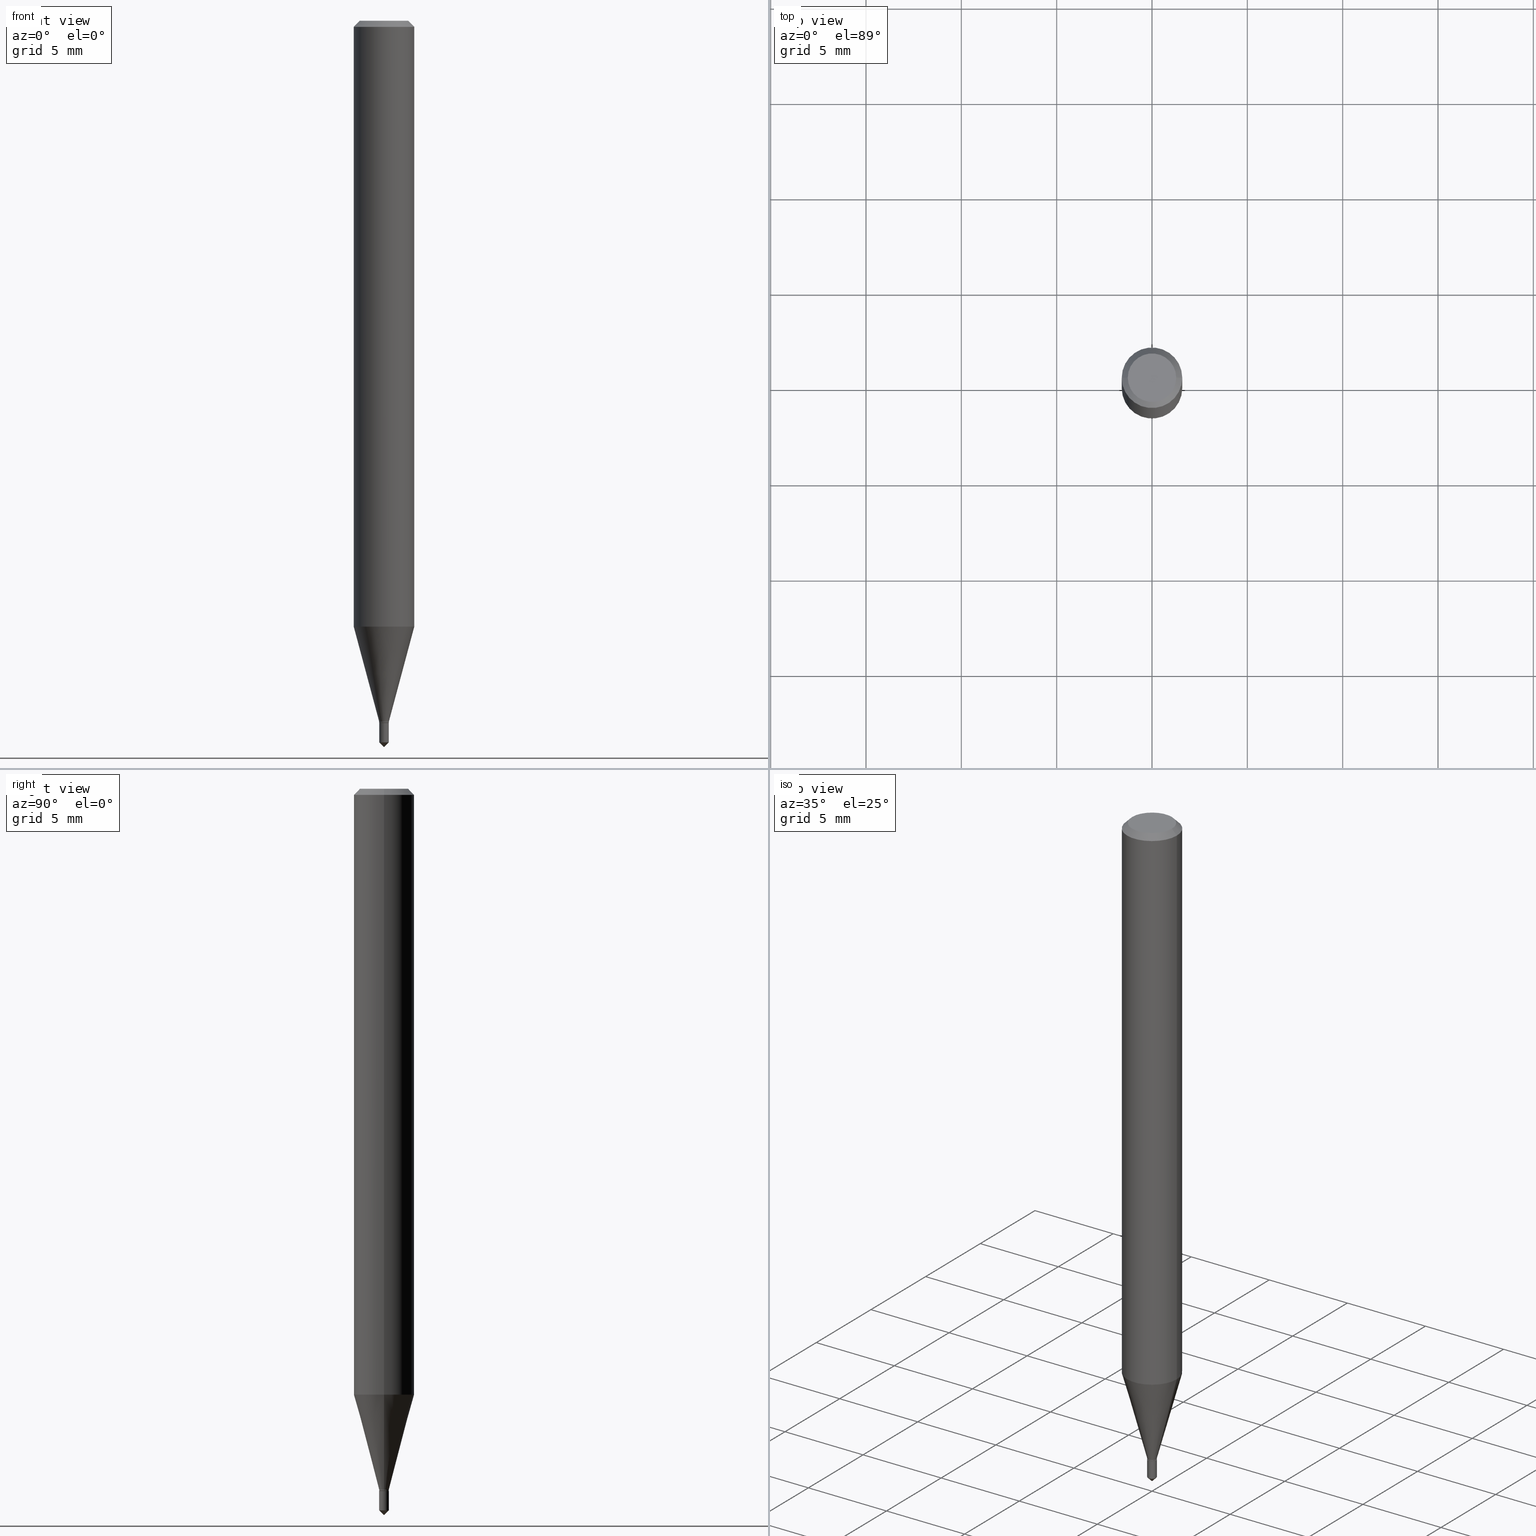
[diagram: canonical four-view strip — front | top / right | iso, engineering-drawing reading convention]
A machine part, canonical four-view strip (front | top / right | iso — engineering-drawing reading convention). The complete STEP part file that produces these views, byte-faithful:
ISO-10303-21;
HEADER;
FILE_DESCRIPTION (( 'STEP AP203' ),
    '1' );
FILE_NAME ('07019.STEP',
    '2024-04-23T19:17:01',
    ( '' ),
    ( '' ),
    'SwSTEP 2.0',
    'SolidWorks 2023',
    '' );
FILE_SCHEMA (( 'CONFIG_CONTROL_DESIGN' ));
ENDSEC;

DATA;
#1 = ORIENTED_EDGE ( 'NONE', *, *, #342, .F. ) ;
#2 = CARTESIAN_POINT ( 'NONE',  ( 3.641751908168339190E-29, -5.275101776967896894E-15, -1.500000000000000444 ) ) ;
#3 = CYLINDRICAL_SURFACE ( 'NONE', #13, 0.06250000000000006939 ) ;
#4 = AXIS2_PLACEMENT_3D ( 'NONE', #236, #418, #45 ) ;
#5 = VECTOR ( 'NONE', #46, 39.37007874015748143 ) ;
#6 = LINE ( 'NONE', #350, #310 ) ;
#7 = PERSON_AND_ORGANIZATION ( #91, #162 ) ;
#8 = DIRECTION ( 'NONE',  ( 1.000000000000000000, -6.982962677686235945E-15, 0.000000000000000000 ) ) ;
#9 = DATE_TIME_ROLE ( 'creation_date' ) ;
#10 = ORIENTED_EDGE ( 'NONE', *, *, #312, .T. ) ;
#11 = EDGE_CURVE ( 'NONE', #379, #166, #6, .T. ) ;
#12 = CARTESIAN_POINT ( 'NONE',  ( 0.06250000000000000000, -4.800786840909313294E-16, -0.01250000000000008570 ) ) ;
#13 = AXIS2_PLACEMENT_3D ( 'NONE', #103, #137, #211 ) ;
#14 = PERSON_AND_ORGANIZATION ( #91, #162 ) ;
#15 = FACE_OUTER_BOUND ( 'NONE', #348, .T. ) ;
#16 = EDGE_LOOP ( 'NONE', ( #256, #72, #76, #56 ) ) ;
#17 = PERSON_AND_ORGANIZATION_ROLE ( 'design_supplier' ) ;
#18 = CARTESIAN_POINT ( 'NONE',  ( 0.000000000000000000, 0.000000000000000000, 0.000000000000000000 ) ) ;
#19 = ORIENTED_EDGE ( 'NONE', *, *, #119, .F. ) ;
#20 = EDGE_CURVE ( 'NONE', #182, #185, #81, .T. ) ;
#21 = CARTESIAN_POINT ( 'NONE',  ( 3.545929768968448850E-29, -5.062647941322561509E-15, -1.450000000000000178 ) ) ;
#22 = CIRCLE ( 'NONE', #49, 0.01000000000000000021 ) ;
#23 = EDGE_LOOP ( 'NONE', ( #448, #473, #34, #413 ) ) ;
#24 = CARTESIAN_POINT ( 'NONE',  ( 3.544707034565356609E-29, -5.060902200653140794E-15, -1.449500000000000455 ) ) ;
#25 = CARTESIAN_POINT ( 'NONE',  ( 3.893286209682126177E-47, -5.558580879666067980E-33, -1.592040838891559689E-18 ) ) ;
#26 = CARTESIAN_POINT ( 'NONE',  ( 3.538593362549893723E-29, -5.052173497306033276E-15, -1.447000000000000508 ) ) ;
#27 = ORIENTED_EDGE ( 'NONE', *, *, #393, .T. ) ;
#28 = AXIS2_PLACEMENT_3D ( 'NONE', #430, #89, #239 ) ;
#29 = DIRECTION ( 'NONE',  ( -2.445468806185136597E-29, 3.491481338843145583E-15, 1.000000000000000000 ) ) ;
#30 = ADVANCED_FACE ( 'NONE', ( #299 ), #131, .T. ) ;
#31 = ORIENTED_EDGE ( 'NONE', *, *, #243, .F. ) ;
#32 = DIRECTION ( 'NONE',  ( -2.427834605445558619E-29, 3.516734517978596615E-15, 1.000000000000000000 ) ) ;
#33 = ORIENTED_EDGE ( 'NONE', *, *, #461, .T. ) ;
#34 = ORIENTED_EDGE ( 'NONE', *, *, #395, .F. ) ;
#35 = CIRCLE ( 'NONE', #160, 0.06250000000000015266 ) ;
#36 = ORIENTED_EDGE ( 'NONE', *, *, #119, .T. ) ;
#37 = ORIENTED_EDGE ( 'NONE', *, *, #65, .T. ) ;
#38 = DIRECTION ( 'NONE',  ( 1.000000000000000000, -6.982962677686265922E-15, 4.876176775795935793E-29 ) ) ;
#39 = DIRECTION ( 'NONE',  ( -2.445468806185136597E-29, 3.491481338843145583E-15, 1.000000000000000000 ) ) ;
#40 = APPLICATION_PROTOCOL_DEFINITION ( 'international standard', 'config_control_design', 1994, #464 ) ;
#41 = PRODUCT_DEFINITION_FORMATION_WITH_SPECIFIED_SOURCE ( 'ANY', '', #252, .NOT_KNOWN. ) ;
#42 = DIRECTION ( 'NONE',  ( 0.7071067811868138042, -2.468850131085046078E-15, 0.7071067811862811192 ) ) ;
#43 = APPROVAL_DATE_TIME ( #84, #62 ) ;
#44 = ADVANCED_FACE ( 'NONE', ( #462 ), #198, .T. ) ;
#45 = DIRECTION ( 'NONE',  ( 1.000000000000000000, -6.982962677686235945E-15, 0.000000000000000000 ) ) ;
#46 = DIRECTION ( 'NONE',  ( -2.445468806185136877E-29, 3.491481338843145188E-15, 1.000000000000000000 ) ) ;
#47 = ADVANCED_FACE ( 'NONE', ( #86 ), #465, .T. ) ;
#48 = LINE ( 'NONE', #2, #175 ) ;
#49 = AXIS2_PLACEMENT_3D ( 'NONE', #191, #39, #8 ) ;
#50 = CARTESIAN_POINT ( 'NONE',  ( 0.01000000000000000021, -5.122003124082895786E-15, -1.447000000000000508 ) ) ;
#51 = AXIS2_PLACEMENT_3D ( 'NONE', #419, #82, #325 ) ;
#52 = VERTEX_POINT ( 'NONE', #228 ) ;
#53 = COORDINATED_UNIVERSAL_TIME_OFFSET ( 5, 0, .BEHIND. ) ;
#54 = FACE_OUTER_BOUND ( 'NONE', #459, .T. ) ;
#55 = UNCERTAINTY_MEASURE_WITH_UNIT (LENGTH_MEASURE( 1.000000000000000082E-05 ), #468, 'distance_accuracy_value', 'NONE');
#56 = ORIENTED_EDGE ( 'NONE', *, *, #213, .F. ) ;
#57 = FACE_OUTER_BOUND ( 'NONE', #339, .T. ) ;
#58 = LOCAL_TIME ( 15, 17, 0.000000000000000000, #361 ) ;
#59 = DIRECTION ( 'NONE',  ( -2.445468806185136597E-29, 3.491481338843145583E-15, 1.000000000000000000 ) ) ;
#60 = VECTOR ( 'NONE', #447, 39.37007874015748143 ) ;
#61 = DIRECTION ( 'NONE',  ( -2.445468806185136597E-29, 3.491481338843145583E-15, 1.000000000000000000 ) ) ;
#62 = APPROVAL ( #349, 'UNSPECIFIED' ) ;
#63 = FACE_OUTER_BOUND ( 'NONE', #16, .T. ) ;
#64 = ORIENTED_EDGE ( 'NONE', *, *, #343, .T. ) ;
#65 = EDGE_CURVE ( 'NONE', #141, #289, #383, .T. ) ;
#66 = LINE ( 'NONE', #174, #60 ) ;
#67 = PRODUCT_DEFINITION ( 'UNKNOWN', '', #41, #246 ) ;
#68 = VERTEX_POINT ( 'NONE', #118 ) ;
#69 = CC_DESIGN_PERSON_AND_ORGANIZATION_ASSIGNMENT ( #14, #390, ( #252 ) ) ;
#70 = CARTESIAN_POINT ( 'NONE',  ( 3.059446136316986925E-29, -4.368078245418367740E-15, -1.251067332602634252 ) ) ;
#71 = EDGE_CURVE ( 'NONE', #477, #360, #48, .T. ) ;
#72 = ORIENTED_EDGE ( 'NONE', *, *, #99, .T. ) ;
#73 = CARTESIAN_POINT ( 'NONE',  ( -6.982962677682720781E-17, -0.01000000000000506213, -1.450000000000000400 ) ) ;
#74 = ORIENTED_EDGE ( 'NONE', *, *, #352, .T. ) ;
#75 = CC_DESIGN_DATE_AND_TIME_ASSIGNMENT ( #193, #9, ( #67 ) ) ;
#76 = ORIENTED_EDGE ( 'NONE', *, *, #20, .T. ) ;
#77 = EDGE_CURVE ( 'NONE', #360, #52, #449, .T. ) ;
#78 = CONICAL_SURFACE ( 'NONE', #51, 0.06250000000000000000, 0.7853981633974450594 ) ;
#79 = ORIENTED_EDGE ( 'NONE', *, *, #218, .F. ) ;
#80 = EDGE_CURVE ( 'NONE', #298, #379, #232, .T. ) ;
#81 = LINE ( 'NONE', #264, #406 ) ;
#82 = DIRECTION ( 'NONE',  ( 2.445468806185136597E-29, -3.491481338843145583E-15, -1.000000000000000000 ) ) ;
#83 = LINE ( 'NONE', #230, #281 ) ;
#84 = DATE_AND_TIME ( #164, #327 ) ;
#85 = AXIS2_PLACEMENT_3D ( 'NONE', #356, #313, #94 ) ;
#86 = FACE_OUTER_BOUND ( 'NONE', #483, .T. ) ;
#87 = DIRECTION ( 'NONE',  ( -6.982962677686265922E-15, -1.000000000000000000, 3.552713678800476080E-15 ) ) ;
#88 =( NAMED_UNIT ( * ) SI_UNIT ( $, .STERADIAN. ) SOLID_ANGLE_UNIT ( ) );
#89 = DIRECTION ( 'NONE',  ( -2.445468806185136597E-29, 3.491481338843145583E-15, 1.000000000000000000 ) ) ;
#90 = APPROVAL_ROLE ( '' ) ;
#91 = PERSON ( 'UNSPECIFIED', 'UNSPECIFIED', 'UNSPECIFIED', ('UNSPECIFIED'), ('UNSPECIFIED'), ('UNSPECIFIED') ) ;
#92 = DIRECTION ( 'NONE',  ( -2.427834605445558619E-29, 3.516734517978596615E-15, 1.000000000000000000 ) ) ;
#93 = CIRCLE ( 'NONE', #425, 0.01000000000000000021 ) ;
#94 = DIRECTION ( 'NONE',  ( -6.982962677686265922E-15, -1.000000000000000000, 0.000000000000000000 ) ) ;
#95 =( GEOMETRIC_REPRESENTATION_CONTEXT ( 3 ) GLOBAL_UNCERTAINTY_ASSIGNED_CONTEXT ( ( #55 ) ) GLOBAL_UNIT_ASSIGNED_CONTEXT ( ( #468, #470, #88 ) ) REPRESENTATION_CONTEXT ( 'NONE', 'WORKASPACE' ) );
#96 = DATE_AND_TIME ( #397, #365 ) ;
#97 = CARTESIAN_POINT ( 'NONE',  ( -0.01000000000000000194, -4.985483575403576559E-15, -1.449500000000000455 ) ) ;
#98 = APPROVAL_ROLE ( '' ) ;
#99 = EDGE_CURVE ( 'NONE', #141, #182, #35, .T. ) ;
#100 = EDGE_CURVE ( 'NONE', #240, #112, #22, .T. ) ;
#101 = DIRECTION ( 'NONE',  ( -2.445468806185136597E-29, 3.491481338843145583E-15, 1.000000000000000000 ) ) ;
#102 = CIRCLE ( 'NONE', #273, 0.01000000000000000194 ) ;
#103 = CARTESIAN_POINT ( 'NONE',  ( 0.000000000000000000, 0.000000000000000000, 0.000000000000000000 ) ) ;
#104 = EDGE_LOOP ( 'NONE', ( #201, #403, #405, #222 ) ) ;
#105 = ADVANCED_FACE ( 'NONE', ( #466 ), #399, .T. ) ;
#106 = LINE ( 'NONE', #180, #450 ) ;
#107 = ORIENTED_EDGE ( 'NONE', *, *, #243, .T. ) ;
#108 = CARTESIAN_POINT ( 'NONE',  ( 3.266252897134846706E-28, 3.663397933039516159E-14, -1.450000000000000178 ) ) ;
#109 = ORIENTED_EDGE ( 'NONE', *, *, #340, .F. ) ;
#110 = CONICAL_SURFACE ( 'NONE', #233, 0.01000000000000000021, 0.2617993877991499074 ) ;
#111 = CARTESIAN_POINT ( 'NONE',  ( 0.04999999999999999584, -4.077247707424184705E-16, -1.592040838888913461E-18 ) ) ;
#112 = VERTEX_POINT ( 'NONE', #345 ) ;
#113 = PRODUCT_DEFINITION_SHAPE ( 'NONE', 'NONE',  #67 ) ;
#114 = ORIENTED_EDGE ( 'NONE', *, *, #412, .T. ) ;
#115 = ORIENTED_EDGE ( 'NONE', *, *, #80, .T. ) ;
#116 = AXIS2_PLACEMENT_3D ( 'NONE', #25, #408, #216 ) ;
#117 = LOCAL_TIME ( 15, 17, 0.000000000000000000, #431 ) ;
#118 = CARTESIAN_POINT ( 'NONE',  ( 7.105427357604644325E-17, 0.009999999999994938285, -1.450000000000000400 ) ) ;
#119 = EDGE_CURVE ( 'NONE', #52, #68, #155, .T. ) ;
#120 = DIRECTION ( 'NONE',  ( 5.024295867788079745E-15, 0.7071067811865524577, 0.7071067811865425767 ) ) ;
#121 = DIRECTION ( 'NONE',  ( -2.445468806185136597E-29, 3.491481338843145583E-15, 1.000000000000000000 ) ) ;
#122 = DIRECTION ( 'NONE',  ( -2.427834605445558619E-29, 3.516734517978596615E-15, 1.000000000000000000 ) ) ;
#123 = PERSON_AND_ORGANIZATION ( #91, #162 ) ;
#124 = APPROVAL_PERSON_ORGANIZATION ( #157, #440, #90 ) ;
#125 = AXIS2_PLACEMENT_3D ( 'NONE', #442, #32, #370 ) ;
#126 = DIRECTION ( 'NONE',  ( 1.000000000000000000, -6.982962677686281699E-15, 0.000000000000000000 ) ) ;
#127 = LENGTH_MEASURE_WITH_UNIT ( LENGTH_MEASURE( 0.02539999999999999897 ), #460 );
#128 = CARTESIAN_POINT ( 'NONE',  ( 3.056836007731441853E-31, -4.364351673553962300E-17, -0.01250000000000008570 ) ) ;
#129 = FACE_OUTER_BOUND ( 'NONE', #139, .T. ) ;
#130 = SECURITY_CLASSIFICATION_LEVEL ( 'unclassified' ) ;
#131 = CONICAL_SURFACE ( 'NONE', #4, 0.01000000000000000021, 0.2617993877991499074 ) ;
#132 = DIRECTION ( 'NONE',  ( 1.000000000000000000, -6.982962677686235156E-15, 0.000000000000000000 ) ) ;
#133 = AXIS2_PLACEMENT_3D ( 'NONE', #203, #479, #439 ) ;
#134 = DATE_AND_TIME ( #475, #58 ) ;
#135 = DIRECTION ( 'NONE',  ( 1.000000000000000000, -6.982962677686265922E-15, 4.876176775795935793E-29 ) ) ;
#136 = CARTESIAN_POINT ( 'NONE',  ( 3.893286209682126177E-47, -5.558580879666067980E-33, -1.592040838891559689E-18 ) ) ;
#137 = DIRECTION ( 'NONE',  ( -2.445468806185136597E-29, 3.491481338843145583E-15, 1.000000000000000000 ) ) ;
#138 = CARTESIAN_POINT ( 'NONE',  ( 3.545929768968448850E-29, -5.062647941322561509E-15, -1.450000000000000178 ) ) ;
#139 = EDGE_LOOP ( 'NONE', ( #19, #147, #114, #411 ) ) ;
#140 = DIRECTION ( 'NONE',  ( -1.000000000000000000, 6.982962677686265922E-15, -4.876176775795935793E-29 ) ) ;
#141 = VERTEX_POINT ( 'NONE', #420 ) ;
#142 = CC_DESIGN_PERSON_AND_ORGANIZATION_ASSIGNMENT ( #355, #17, ( #41 ) ) ;
#143 = EDGE_CURVE ( 'NONE', #240, #141, #83, .T. ) ;
#144 = DIRECTION ( 'NONE',  ( 1.000000000000000000, -6.982962677686265922E-15, 4.876176775795935793E-29 ) ) ;
#145 = ORIENTED_EDGE ( 'NONE', *, *, #393, .F. ) ;
#146 = AXIS2_PLACEMENT_3D ( 'NONE', #282, #375, #140 ) ;
#147 = ORIENTED_EDGE ( 'NONE', *, *, #250, .T. ) ;
#148 = DIRECTION ( 'NONE',  ( -2.445468806185136877E-29, 3.491481338843145188E-15, 1.000000000000000000 ) ) ;
#149 = CC_DESIGN_SECURITY_CLASSIFICATION ( #424, ( #41 ) ) ;
#150 = VERTEX_POINT ( 'NONE', #97 ) ;
#151 = VECTOR ( 'NONE', #344, 39.37007874015748143 ) ;
#152 = PLANE ( 'NONE',  #302 ) ;
#153 = CARTESIAN_POINT ( 'NONE',  ( -0.06250000000000006939, 4.440892098500631092E-16, -3.074334431409319617E-30 ) ) ;
#154 = CALENDAR_DATE ( 2024, 23, 4 ) ;
#155 = LINE ( 'NONE', #269, #336 ) ;
#156 = ADVANCED_FACE ( 'NONE', ( #435 ), #163, .T. ) ;
#157 = PERSON_AND_ORGANIZATION ( #91, #162 ) ;
#158 = DIRECTION ( 'NONE',  ( -4.937700262164565397E-15, -0.7071067811865475727, 0.7071067811865474617 ) ) ;
#159 = APPROVAL_ROLE ( '' ) ;
#160 = AXIS2_PLACEMENT_3D ( 'NONE', #385, #121, #309 ) ;
#161 = VECTOR ( 'NONE', #178, 39.37007874015748143 ) ;
#162 = ORGANIZATION ( 'UNSPECIFIED', 'UNSPECIFIED', '' ) ;
#163 = CYLINDRICAL_SURFACE ( 'NONE', #311, 0.01000000000000000021 ) ;
#164 = CALENDAR_DATE ( 2024, 23, 4 ) ;
#165 = DIRECTION ( 'NONE',  ( -2.445468806185136597E-29, 3.491481338843145583E-15, 1.000000000000000000 ) ) ;
#166 = VERTEX_POINT ( 'NONE', #276 ) ;
#167 = DIRECTION ( 'NONE',  ( 1.000000000000000000, -6.982962677686235156E-15, 0.000000000000000000 ) ) ;
#168 = APPROVAL_STATUS ( 'not_yet_approved' ) ;
#169 = AXIS2_PLACEMENT_3D ( 'NONE', #455, #341, #457 ) ;
#170 = PLANE ( 'NONE',  #133 ) ;
#171 = AXIS2_PLACEMENT_3D ( 'NONE', #433, #92, #392 ) ;
#172 = DIRECTION ( 'NONE',  ( 1.000000000000000000, -6.982962677686281699E-15, 0.000000000000000000 ) ) ;
#173 = CARTESIAN_POINT ( 'NONE',  ( -0.009499999999999999764, -4.995146381425351537E-15, -1.450000000000000178 ) ) ;
#174 = CARTESIAN_POINT ( 'NONE',  ( 0.06250000000000000000, -4.724246415962603826E-16, -0.01250000000000008570 ) ) ;
#175 = VECTOR ( 'NONE', #158, 39.37007874015748143 ) ;
#176 = AXIS2_PLACEMENT_3D ( 'NONE', #253, #402, #444 ) ;
#177 = ORIENTED_EDGE ( 'NONE', *, *, #277, .T. ) ;
#178 = DIRECTION ( 'NONE',  ( -0.7071067811865452413, 2.468850131082233000E-15, -0.7071067811865497932 ) ) ;
#179 = ORIENTED_EDGE ( 'NONE', *, *, #77, .F. ) ;
#180 = CARTESIAN_POINT ( 'NONE',  ( -0.01000000000000000021, 7.105427357601002007E-17, -4.918935090254906272E-31 ) ) ;
#181 = EDGE_LOOP ( 'NONE', ( #109, #115, #227, #334 ) ) ;
#182 = VERTEX_POINT ( 'NONE', #396 ) ;
#183 = AXIS2_PLACEMENT_3D ( 'NONE', #255, #486, #144 ) ;
#184 = ADVANCED_FACE ( 'NONE', ( #15 ), #110, .T. ) ;
#185 = VERTEX_POINT ( 'NONE', #12 ) ;
#186 = ORIENTED_EDGE ( 'NONE', *, *, #213, .T. ) ;
#187 = DIRECTION ( 'NONE',  ( -0.7071067811868138042, 7.493145998871314993E-15, 0.7071067811862811192 ) ) ;
#188 = DIRECTION ( 'NONE',  ( -2.445468806185136597E-29, 3.491481338843145583E-15, 1.000000000000000000 ) ) ;
#189 = AXIS2_PLACEMENT_3D ( 'NONE', #136, #101, #248 ) ;
#190 = CC_DESIGN_APPROVAL ( #62, ( #67 ) ) ;
#191 = CARTESIAN_POINT ( 'NONE',  ( 3.538593362549893723E-29, -5.052173497306033276E-15, -1.447000000000000508 ) ) ;
#192 = ADVANCED_FACE ( 'NONE', ( #476 ), #170, .F. ) ;
#193 = DATE_AND_TIME ( #154, #117 ) ;
#194 = DIRECTION ( 'NONE',  ( -2.445468806185136877E-29, 3.491481338843145188E-15, 1.000000000000000000 ) ) ;
#195 = DIRECTION ( 'NONE',  ( -2.445468806185136597E-29, 3.491481338843145583E-15, 1.000000000000000000 ) ) ;
#196 = ADVANCED_FACE ( 'NONE', ( #285 ), #321, .T. ) ;
#197 = APPROVAL_STATUS ( 'not_yet_approved' ) ;
#198 = CONICAL_SURFACE ( 'NONE', #422, 39.37007874015775855, 0.7853981633974518317 ) ;
#199 = CIRCLE ( 'NONE', #28, 0.06250000000000000000 ) ;
#200 = DIRECTION ( 'NONE',  ( -1.000000000000000000, 6.982962677686266711E-15, 0.000000000000000000 ) ) ;
#201 = ORIENTED_EDGE ( 'NONE', *, *, #395, .T. ) ;
#202 = PERSON_AND_ORGANIZATION_ROLE ( 'creator' ) ;
#203 = CARTESIAN_POINT ( 'NONE',  ( 3.545929768968449411E-29, -5.062647941322562298E-15, -1.450000000000000400 ) ) ;
#204 = DIRECTION ( 'NONE',  ( -2.445468806185136597E-29, 3.491481338843145583E-15, 1.000000000000000000 ) ) ;
#205 = VECTOR ( 'NONE', #194, 39.37007874015748143 ) ;
#206 = CARTESIAN_POINT ( 'NONE',  ( 3.056836007731441853E-31, -4.364351673553962300E-17, -0.01250000000000008570 ) ) ;
#207 = CIRCLE ( 'NONE', #415, 0.06250000000000000000 ) ;
#208 = CC_DESIGN_PERSON_AND_ORGANIZATION_ASSIGNMENT ( #278, #347, ( #67 ) ) ;
#209 = DIMENSIONAL_EXPONENTS ( 1.000000000000000000, 0.000000000000000000, 0.000000000000000000, 0.000000000000000000, 0.000000000000000000, 0.000000000000000000, 0.000000000000000000 ) ;
#210 = DIRECTION ( 'NONE',  ( 2.445468806185136597E-29, -3.491481338843145583E-15, -1.000000000000000000 ) ) ;
#211 = DIRECTION ( 'NONE',  ( 1.000000000000000000, -6.982962677686267499E-15, 4.876176775795936353E-29 ) ) ;
#212 = EDGE_LOOP ( 'NONE', ( #346, #368, #263, #186 ) ) ;
#213 = EDGE_CURVE ( 'NONE', #289, #185, #207, .T. ) ;
#214 = PERSON_AND_ORGANIZATION ( #91, #162 ) ;
#215 = APPROVAL_PERSON_ORGANIZATION ( #214, #297, #98 ) ;
#216 = DIRECTION ( 'NONE',  ( 1.000000000000000000, -6.982962677686265922E-15, 4.875957971899673662E-29 ) ) ;
#217 = CLOSED_SHELL ( 'NONE', ( #238, #446, #196, #30, #156, #354, #184, #428, #272, #300, #304, #105 ) ) ;
#218 = EDGE_CURVE ( 'NONE', #166, #150, #266, .T. ) ;
#219 = AXIS2_PLACEMENT_3D ( 'NONE', #429, #237, #386 ) ;
#220 = ORIENTED_EDGE ( 'NONE', *, *, #371, .F. ) ;
#221 = CARTESIAN_POINT ( 'NONE',  ( -6.982962677682720781E-17, -0.01000000000000506213, -1.450000000000000400 ) ) ;
#222 = ORIENTED_EDGE ( 'NONE', *, *, #284, .F. ) ;
#223 = DIRECTION ( 'NONE',  ( -2.438088387897960049E-29, 3.491481338843145188E-15, 1.000000000000000000 ) ) ;
#224 = ORIENTED_EDGE ( 'NONE', *, *, #340, .T. ) ;
#225 = ORIENTED_EDGE ( 'NONE', *, *, #99, .F. ) ;
#226 = VECTOR ( 'NONE', #120, 39.37007874015748143 ) ;
#227 = ORIENTED_EDGE ( 'NONE', *, *, #11, .T. ) ;
#228 = CARTESIAN_POINT ( 'NONE',  ( 7.105427357604643093E-17, 0.009999999999994796038, -1.490000000000000435 ) ) ;
#229 = DIRECTION ( 'NONE',  ( 0.000000000000000000, 0.000000000000000000, 1.000000000000000000 ) ) ;
#230 = CARTESIAN_POINT ( 'NONE',  ( -0.01000000000000000021, -4.981119223730023195E-15, -1.447000000000000508 ) ) ;
#231 = EDGE_CURVE ( 'NONE', #150, #166, #102, .T. ) ;
#232 = CIRCLE ( 'NONE', #488, 0.009499999999999999764 ) ;
#233 = AXIS2_PLACEMENT_3D ( 'NONE', #472, #165, #283 ) ;
#234 = CARTESIAN_POINT ( 'NONE',  ( 3.545929768968448850E-29, -5.062647941322561509E-15, -1.450000000000000178 ) ) ;
#235 = CARTESIAN_POINT ( 'NONE',  ( 0.000000000000000000, 0.000000000000000000, 0.000000000000000000 ) ) ;
#236 = CARTESIAN_POINT ( 'NONE',  ( 3.538593362549893723E-29, -5.052173497306033276E-15, -1.447000000000000508 ) ) ;
#237 = DIRECTION ( 'NONE',  ( -2.427834605445558619E-29, 3.516734517978596615E-15, 1.000000000000000000 ) ) ;
#238 = ADVANCED_FACE ( 'NONE', ( #57 ), #474, .T. ) ;
#239 = DIRECTION ( 'NONE',  ( 1.000000000000000000, -6.982962677686266711E-15, 0.000000000000000000 ) ) ;
#240 = VERTEX_POINT ( 'NONE', #323 ) ;
#241 = LINE ( 'NONE', #384, #5 ) ;
#242 = DIRECTION ( 'NONE',  ( 1.000000000000000000, -6.982962677686266711E-15, 0.000000000000000000 ) ) ;
#243 = EDGE_CURVE ( 'NONE', #329, #331, #456, .T. ) ;
#244 = CARTESIAN_POINT ( 'NONE',  ( -0.009499999999999999764, -4.992497154251241914E-15, -1.450000000000000178 ) ) ;
#245 = DIRECTION ( 'NONE',  ( -2.445468806185136597E-29, 3.491481338843145583E-15, 1.000000000000000000 ) ) ;
#246 = DESIGN_CONTEXT ( 'detailed design', #464, 'design' ) ;
#247 = AXIS2_PLACEMENT_3D ( 'NONE', #128, #210, #200 ) ;
#248 = DIRECTION ( 'NONE',  ( 1.000000000000000000, -6.982962677686265922E-15, 4.875957971899673662E-29 ) ) ;
#249 = ORIENTED_EDGE ( 'NONE', *, *, #432, .F. ) ;
#250 = EDGE_CURVE ( 'NONE', #52, #360, #407, .T. ) ;
#251 = SHAPE_DEFINITION_REPRESENTATION ( #113, #332 ) ;
#252 = PRODUCT ( '07019', '07019', '', ( #426 ) ) ;
#253 = CARTESIAN_POINT ( 'NONE',  ( 3.545929768968449411E-29, -5.062647941322562298E-15, -1.450000000000000400 ) ) ;
#254 = ORIENTED_EDGE ( 'NONE', *, *, #461, .F. ) ;
#255 = CARTESIAN_POINT ( 'NONE',  ( 0.000000000000000000, 0.000000000000000000, 0.000000000000000000 ) ) ;
#256 = ORIENTED_EDGE ( 'NONE', *, *, #65, .F. ) ;
#257 = DIRECTION ( 'NONE',  ( -2.445468806185136877E-29, 3.491481338843145188E-15, 1.000000000000000000 ) ) ;
#258 = MANIFOLD_SOLID_BREP ( 'Body-Move/Copy2[1]', #319 ) ;
#259 = AXIS2_PLACEMENT_3D ( 'NONE', #18, #204, #436 ) ;
#260 = ORIENTED_EDGE ( 'NONE', *, *, #80, .F. ) ;
#261 = CARTESIAN_POINT ( 'NONE',  ( -6.982962677682624638E-17, -0.01000000000000520611, -1.490000000000000435 ) ) ;
#262 = EDGE_LOOP ( 'NONE', ( #33, #74 ) ) ;
#263 = ORIENTED_EDGE ( 'NONE', *, *, #371, .T. ) ;
#264 = CARTESIAN_POINT ( 'NONE',  ( 0.06250000000000006939, -4.364351673553922118E-16, 3.047610484872463724E-30 ) ) ;
#265 = AXIS2_PLACEMENT_3D ( 'NONE', #301, #427, #305 ) ;
#266 = CIRCLE ( 'NONE', #293, 0.01000000000000000194 ) ;
#267 = CARTESIAN_POINT ( 'NONE',  ( 3.545929768968448850E-29, -5.062647941322561509E-15, -1.450000000000000178 ) ) ;
#268 = FACE_OUTER_BOUND ( 'NONE', #338, .T. ) ;
#269 = CARTESIAN_POINT ( 'NONE',  ( 7.105427357604545718E-17, 0.009999999999994938285, -1.450000000000000400 ) ) ;
#270 = COORDINATED_UNIVERSAL_TIME_OFFSET ( 5, 0, .BEHIND. ) ;
#271 = CARTESIAN_POINT ( 'NONE',  ( -9.191671808523009798E-28, 1.332156302138256113E-13, 37.87007874015748143 ) ) ;
#272 = ADVANCED_FACE ( 'NONE', ( #401 ), #382, .T. ) ;
#273 = AXIS2_PLACEMENT_3D ( 'NONE', #24, #59, #167 ) ;
#274 = APPLICATION_PROTOCOL_DEFINITION ( 'international standard', 'config_control_design', 1994, #438 ) ;
#275 = DIRECTION ( 'NONE',  ( -2.427834605445558339E-29, 3.516734517978597009E-15, 1.000000000000000000 ) ) ;
#276 = CARTESIAN_POINT ( 'NONE',  ( 0.01000000000000000194, -5.130731827430003304E-15, -1.449500000000000455 ) ) ;
#277 = EDGE_CURVE ( 'NONE', #185, #289, #199, .T. ) ;
#278 = PERSON_AND_ORGANIZATION ( #91, #162 ) ;
#279 = CYLINDRICAL_SURFACE ( 'NONE', #171, 0.01000000000000000021 ) ;
#280 = PERSON_AND_ORGANIZATION_ROLE ( 'classification_officer' ) ;
#281 = VECTOR ( 'NONE', #469, 39.37007874015748854 ) ;
#282 = CARTESIAN_POINT ( 'NONE',  ( 1.946643104841063088E-47, -2.779290439833033990E-33, -7.960204194457798443E-19 ) ) ;
#283 = DIRECTION ( 'NONE',  ( 1.000000000000000000, -6.982962677686235945E-15, 0.000000000000000000 ) ) ;
#284 = EDGE_CURVE ( 'NONE', #112, #182, #387, .T. ) ;
#285 = FACE_OUTER_BOUND ( 'NONE', #374, .T. ) ;
#286 = CYLINDRICAL_SURFACE ( 'NONE', #176, 0.01000000000000000021 ) ;
#287 = ORIENTED_EDGE ( 'NONE', *, *, #357, .T. ) ;
#288 = FACE_OUTER_BOUND ( 'NONE', #372, .T. ) ;
#289 = VERTEX_POINT ( 'NONE', #471 ) ;
#290 = LINE ( 'NONE', #73, #151 ) ;
#291 = ORIENTED_EDGE ( 'NONE', *, *, #71, .T. ) ;
#292 = DIRECTION ( 'NONE',  ( 1.000000000000000000, -6.982962677686235945E-15, 0.000000000000000000 ) ) ;
#293 = AXIS2_PLACEMENT_3D ( 'NONE', #315, #398, #132 ) ;
#294 = EDGE_LOOP ( 'NONE', ( #378, #36, #254, #376 ) ) ;
#295 = CC_DESIGN_APPROVAL ( #440, ( #41 ) ) ;
#296 = ADVANCED_FACE ( 'NONE', ( #129 ), #279, .T. ) ;
#297 = APPROVAL ( #168, 'UNSPECIFIED' ) ;
#298 = VERTEX_POINT ( 'NONE', #244 ) ;
#299 = FACE_OUTER_BOUND ( 'NONE', #104, .T. ) ;
#300 = ADVANCED_FACE ( 'NONE', ( #54 ), #316, .F. ) ;
#301 = CARTESIAN_POINT ( 'NONE',  ( 3.643043153186271251E-29, -5.203317322041706920E-15, -1.490000000000000435 ) ) ;
#302 = AXIS2_PLACEMENT_3D ( 'NONE', #108, #223, #38 ) ;
#303 = LINE ( 'NONE', #458, #226 ) ;
#304 = ADVANCED_FACE ( 'NONE', ( #451 ), #152, .F. ) ;
#305 = DIRECTION ( 'NONE',  ( -6.982962677686265922E-15, -1.000000000000000000, 0.000000000000000000 ) ) ;
#306 = CARTESIAN_POINT ( 'NONE',  ( 3.641751908168338069E-29, -5.275101776967896105E-15, -1.500000000000000444 ) ) ;
#307 = ORIENTED_EDGE ( 'NONE', *, *, #277, .F. ) ;
#308 = CALENDAR_DATE ( 2024, 23, 4 ) ;
#309 = DIRECTION ( 'NONE',  ( 1.000000000000000000, -6.982962677686269077E-15, 0.000000000000000000 ) ) ;
#310 = VECTOR ( 'NONE', #42, 39.37007874015748854 ) ;
#311 = AXIS2_PLACEMENT_3D ( 'NONE', #359, #61, #135 ) ;
#312 = EDGE_CURVE ( 'NONE', #329, #185, #66, .T. ) ;
#313 = DIRECTION ( 'NONE',  ( -2.427834605445558619E-29, 3.516734517978596615E-15, 1.000000000000000000 ) ) ;
#314 = DATE_AND_TIME ( #308, #320 ) ;
#315 = CARTESIAN_POINT ( 'NONE',  ( 3.544707034565356609E-29, -5.060902200653140794E-15, -1.449500000000000455 ) ) ;
#316 = PLANE ( 'NONE',  #146 ) ;
#317 = ORIENTED_EDGE ( 'NONE', *, *, #11, .F. ) ;
#318 = COORDINATED_UNIVERSAL_TIME_OFFSET ( 5, 0, .BEHIND. ) ;
#319 = CLOSED_SHELL ( 'NONE', ( #454, #47, #44, #296, #192 ) ) ;
#320 = LOCAL_TIME ( 15, 17, 0.000000000000000000, #53 ) ;
#321 = CYLINDRICAL_SURFACE ( 'NONE', #259, 0.06250000000000006939 ) ;
#322 = ORIENTED_EDGE ( 'NONE', *, *, #100, .F. ) ;
#323 = CARTESIAN_POINT ( 'NONE',  ( -0.01000000000000000021, -4.985483575403576559E-15, -1.447000000000000508 ) ) ;
#324 = AXIS2_PLACEMENT_3D ( 'NONE', #235, #229, #351 ) ;
#325 = DIRECTION ( 'NONE',  ( -1.000000000000000000, 6.982962677686266711E-15, 0.000000000000000000 ) ) ;
#326 = AXIS2_PLACEMENT_3D ( 'NONE', #267, #188, #126 ) ;
#327 = LOCAL_TIME ( 15, 17, 0.000000000000000000, #270 ) ;
#328 = LINE ( 'NONE', #173, #400 ) ;
#329 = VERTEX_POINT ( 'NONE', #111 ) ;
#330 = DIRECTION ( 'NONE',  ( 1.000000000000000000, -6.982962677686281699E-15, 0.000000000000000000 ) ) ;
#331 = VERTEX_POINT ( 'NONE', #364 ) ;
#332 = ADVANCED_BREP_SHAPE_REPRESENTATION ( '07019', ( #258, #417, #324 ), #95 ) ;
#333 = CYLINDRICAL_SURFACE ( 'NONE', #183, 0.01000000000000000021 ) ;
#334 = ORIENTED_EDGE ( 'NONE', *, *, #231, .F. ) ;
#335 = CC_DESIGN_APPROVAL ( #297, ( #424 ) ) ;
#336 = VECTOR ( 'NONE', #275, 39.37007874015748143 ) ;
#337 = AXIS2_PLACEMENT_3D ( 'NONE', #70, #29, #404 ) ;
#338 = EDGE_LOOP ( 'NONE', ( #31, #10, #177, #220 ) ) ;
#339 = EDGE_LOOP ( 'NONE', ( #27, #224, #79, #317 ) ) ;
#340 = EDGE_CURVE ( 'NONE', #298, #150, #328, .T. ) ;
#341 = DIRECTION ( 'NONE',  ( -2.427834605445558619E-29, 3.516734517978596615E-15, 1.000000000000000000 ) ) ;
#342 = EDGE_CURVE ( 'NONE', #150, #240, #106, .T. ) ;
#343 = EDGE_CURVE ( 'NONE', #331, #329, #369, .T. ) ;
#344 = DIRECTION ( 'NONE',  ( -2.427834605445558339E-29, 3.516734517978597009E-15, 1.000000000000000000 ) ) ;
#345 = CARTESIAN_POINT ( 'NONE',  ( 0.01000000000000000021, -5.122003124082895786E-15, -1.447000000000000508 ) ) ;
#346 = ORIENTED_EDGE ( 'NONE', *, *, #312, .F. ) ;
#347 = PERSON_AND_ORGANIZATION_ROLE ( 'creator' ) ;
#348 = EDGE_LOOP ( 'NONE', ( #409, #437, #485, #225 ) ) ;
#349 = APPROVAL_STATUS ( 'not_yet_approved' ) ;
#350 = CARTESIAN_POINT ( 'NONE',  ( 0.009499999999999999764, -5.128986086760581011E-15, -1.450000000000000178 ) ) ;
#351 = DIRECTION ( 'NONE',  ( 1.000000000000000000, 0.000000000000000000, 0.000000000000000000 ) ) ;
#352 = EDGE_CURVE ( 'NONE', #68, #381, #467, .T. ) ;
#353 = DIRECTION ( 'NONE',  ( 0.2588190451025211836, 1.565188264969622559E-15, 0.9659258262890679791 ) ) ;
#354 = ADVANCED_FACE ( 'NONE', ( #288 ), #333, .T. ) ;
#355 = PERSON_AND_ORGANIZATION ( #91, #162 ) ;
#356 = CARTESIAN_POINT ( 'NONE',  ( 3.643043153186271251E-29, -5.203317322041706920E-15, -1.490000000000000435 ) ) ;
#357 = EDGE_CURVE ( 'NONE', #182, #141, #377, .T. ) ;
#358 = APPROVAL_DATE_TIME ( #134, #297 ) ;
#359 = CARTESIAN_POINT ( 'NONE',  ( 0.000000000000000000, 0.000000000000000000, 0.000000000000000000 ) ) ;
#360 = VERTEX_POINT ( 'NONE', #261 ) ;
#361 = COORDINATED_UNIVERSAL_TIME_OFFSET ( 5, 0, .BEHIND. ) ;
#362 = VECTOR ( 'NONE', #353, 39.37007874015748854 ) ;
#363 = DIRECTION ( 'NONE',  ( -2.445468806185136597E-29, 3.491481338843145583E-15, 1.000000000000000000 ) ) ;
#364 = CARTESIAN_POINT ( 'NONE',  ( -0.04999999999999999584, 3.709698922520826725E-16, -1.592040838894077649E-18 ) ) ;
#365 = LOCAL_TIME ( 15, 17, 0.000000000000000000, #318 ) ;
#366 = CC_DESIGN_DATE_AND_TIME_ASSIGNMENT ( #96, #394, ( #424 ) ) ;
#367 = CARTESIAN_POINT ( 'NONE',  ( -0.06250000000000000000, 3.927916506198520587E-16, -0.01250000000000008570 ) ) ;
#368 = ORIENTED_EDGE ( 'NONE', *, *, #343, .F. ) ;
#369 = CIRCLE ( 'NONE', #116, 0.04999999999999999584 ) ;
#370 = DIRECTION ( 'NONE',  ( -6.982962677686265922E-15, -1.000000000000000000, 0.000000000000000000 ) ) ;
#371 = EDGE_CURVE ( 'NONE', #331, #289, #482, .T. ) ;
#372 = EDGE_LOOP ( 'NONE', ( #1, #443, #453, #322 ) ) ;
#373 = CARTESIAN_POINT ( 'NONE',  ( 0.009499999999999999764, -5.128986086760581011E-15, -1.450000000000000178 ) ) ;
#374 = EDGE_LOOP ( 'NONE', ( #287, #37, #307, #452 ) ) ;
#375 = DIRECTION ( 'NONE',  ( 2.438088387897960049E-29, -3.491481338843145188E-15, -1.000000000000000000 ) ) ;
#376 = ORIENTED_EDGE ( 'NONE', *, *, #412, .F. ) ;
#377 = CIRCLE ( 'NONE', #337, 0.06250000000000015266 ) ;
#378 = ORIENTED_EDGE ( 'NONE', *, *, #77, .T. ) ;
#379 = VERTEX_POINT ( 'NONE', #373 ) ;
#380 = DIRECTION ( 'NONE',  ( 1.000000000000000000, -6.982962677686281699E-15, 0.000000000000000000 ) ) ;
#381 = VERTEX_POINT ( 'NONE', #221 ) ;
#382 = CONICAL_SURFACE ( 'NONE', #247, 0.06250000000000000000, 0.7853981633974450594 ) ;
#383 = LINE ( 'NONE', #153, #205 ) ;
#384 = CARTESIAN_POINT ( 'NONE',  ( 0.01000000000000000021, -6.982962677686265724E-17, 4.876176775795935968E-31 ) ) ;
#385 = CARTESIAN_POINT ( 'NONE',  ( 3.059446136316986925E-29, -4.368078245418367740E-15, -1.251067332602634252 ) ) ;
#386 = DIRECTION ( 'NONE',  ( -6.982962677686265922E-15, -1.000000000000000000, 0.000000000000000000 ) ) ;
#387 = LINE ( 'NONE', #50, #362 ) ;
#388 = APPROVAL_PERSON_ORGANIZATION ( #7, #62, #159 ) ;
#389 = CIRCLE ( 'NONE', #219, 0.01000000000000000021 ) ;
#390 = PERSON_AND_ORGANIZATION_ROLE ( 'design_owner' ) ;
#391 = CC_DESIGN_PERSON_AND_ORGANIZATION_ASSIGNMENT ( #123, #202, ( #41 ) ) ;
#392 = DIRECTION ( 'NONE',  ( -6.982962677686265922E-15, -1.000000000000000000, 0.000000000000000000 ) ) ;
#393 = EDGE_CURVE ( 'NONE', #379, #298, #441, .T. ) ;
#394 = DATE_TIME_ROLE ( 'classification_date' ) ;
#395 = EDGE_CURVE ( 'NONE', #112, #240, #93, .T. ) ;
#396 = CARTESIAN_POINT ( 'NONE',  ( 0.06250000000000015266, -4.804513412773760987E-15, -1.251067332602634252 ) ) ;
#397 = CALENDAR_DATE ( 2024, 23, 4 ) ;
#398 = DIRECTION ( 'NONE',  ( -2.445468806185136597E-29, 3.491481338843145583E-15, 1.000000000000000000 ) ) ;
#399 = CONICAL_SURFACE ( 'NONE', #326, 0.009499999999999999764, 0.7853981633978249777 ) ;
#400 = VECTOR ( 'NONE', #187, 39.37007874015748854 ) ;
#401 = FACE_OUTER_BOUND ( 'NONE', #212, .T. ) ;
#402 = DIRECTION ( 'NONE',  ( -2.427834605445558619E-29, 3.516734517978596615E-15, 1.000000000000000000 ) ) ;
#403 = ORIENTED_EDGE ( 'NONE', *, *, #143, .T. ) ;
#404 = DIRECTION ( 'NONE',  ( 1.000000000000000000, -6.982962677686269077E-15, 0.000000000000000000 ) ) ;
#405 = ORIENTED_EDGE ( 'NONE', *, *, #357, .F. ) ;
#406 = VECTOR ( 'NONE', #148, 39.37007874015748143 ) ;
#407 = CIRCLE ( 'NONE', #85, 0.01000000000000000021 ) ;
#408 = DIRECTION ( 'NONE',  ( -2.445468806185136597E-29, 3.491481338843145583E-15, 1.000000000000000000 ) ) ;
#409 = ORIENTED_EDGE ( 'NONE', *, *, #143, .F. ) ;
#410 = DIRECTION ( 'NONE',  ( -2.445468806185136597E-29, 3.491481338843145583E-15, 1.000000000000000000 ) ) ;
#411 = ORIENTED_EDGE ( 'NONE', *, *, #352, .F. ) ;
#412 = EDGE_CURVE ( 'NONE', #360, #381, #290, .T. ) ;
#413 = ORIENTED_EDGE ( 'NONE', *, *, #478, .F. ) ;
#414 = CC_DESIGN_PERSON_AND_ORGANIZATION_ASSIGNMENT ( #434, #280, ( #424 ) ) ;
#415 = AXIS2_PLACEMENT_3D ( 'NONE', #206, #245, #242 ) ;
#416 = ORIENTED_EDGE ( 'NONE', *, *, #71, .F. ) ;
#417 = MANIFOLD_SOLID_BREP ( 'Body-Move/Copy2[2]', #217 ) ;
#418 = DIRECTION ( 'NONE',  ( -2.445468806185136597E-29, 3.491481338843145583E-15, 1.000000000000000000 ) ) ;
#419 = CARTESIAN_POINT ( 'NONE',  ( 3.056836007731441853E-31, -4.364351673553962300E-17, -0.01250000000000008570 ) ) ;
#420 = CARTESIAN_POINT ( 'NONE',  ( -0.06250000000000015266, -3.923989035568304335E-15, -1.251067332602634252 ) ) ;
#421 = ORIENTED_EDGE ( 'NONE', *, *, #432, .T. ) ;
#422 = AXIS2_PLACEMENT_3D ( 'NONE', #271, #122, #87 ) ;
#423 = PRODUCT_RELATED_PRODUCT_CATEGORY ( 'detail', '', ( #252 ) ) ;
#424 = SECURITY_CLASSIFICATION ( '', '', #130 ) ;
#425 = AXIS2_PLACEMENT_3D ( 'NONE', #26, #484, #292 ) ;
#426 = MECHANICAL_CONTEXT ( 'NONE', #438, 'mechanical' ) ;
#427 = DIRECTION ( 'NONE',  ( -2.427834605445558619E-29, 3.516734517978596615E-15, 1.000000000000000000 ) ) ;
#428 = ADVANCED_FACE ( 'NONE', ( #63 ), #3, .T. ) ;
#429 = CARTESIAN_POINT ( 'NONE',  ( 3.545929768968449411E-29, -5.062647941322562298E-15, -1.450000000000000400 ) ) ;
#430 = CARTESIAN_POINT ( 'NONE',  ( 3.056836007731441853E-31, -4.364351673553962300E-17, -0.01250000000000008570 ) ) ;
#431 = COORDINATED_UNIVERSAL_TIME_OFFSET ( 5, 0, .BEHIND. ) ;
#432 = EDGE_CURVE ( 'NONE', #477, #52, #303, .T. ) ;
#433 = CARTESIAN_POINT ( 'NONE',  ( 3.545929768968449411E-29, -5.062647941322562298E-15, -1.450000000000000400 ) ) ;
#434 = PERSON_AND_ORGANIZATION ( #91, #162 ) ;
#435 = FACE_OUTER_BOUND ( 'NONE', #23, .T. ) ;
#436 = DIRECTION ( 'NONE',  ( 1.000000000000000000, -6.982962677686267499E-15, 4.876176775795936353E-29 ) ) ;
#437 = ORIENTED_EDGE ( 'NONE', *, *, #100, .T. ) ;
#438 = APPLICATION_CONTEXT ( 'configuration controlled 3d designs of mechanical parts and assemblies' ) ;
#439 = DIRECTION ( 'NONE',  ( 6.982962677686265922E-15, 1.000000000000000000, -3.516734517978597009E-15 ) ) ;
#440 = APPROVAL ( #197, 'UNSPECIFIED' ) ;
#441 = CIRCLE ( 'NONE', #481, 0.009499999999999999764 ) ;
#442 = CARTESIAN_POINT ( 'NONE',  ( 3.545929768968449411E-29, -5.062647941322562298E-15, -1.450000000000000400 ) ) ;
#443 = ORIENTED_EDGE ( 'NONE', *, *, #231, .T. ) ;
#444 = DIRECTION ( 'NONE',  ( -6.982962677686265922E-15, -1.000000000000000000, 0.000000000000000000 ) ) ;
#445 = ORIENTED_EDGE ( 'NONE', *, *, #250, .F. ) ;
#446 = ADVANCED_FACE ( 'NONE', ( #268 ), #78, .T. ) ;
#447 = DIRECTION ( 'NONE',  ( 0.7071067811865452413, -7.319954787623248157E-15, -0.7071067811865497932 ) ) ;
#448 = ORIENTED_EDGE ( 'NONE', *, *, #218, .T. ) ;
#449 = CIRCLE ( 'NONE', #265, 0.01000000000000000021 ) ;
#450 = VECTOR ( 'NONE', #257, 39.37007874015748143 ) ;
#451 = FACE_OUTER_BOUND ( 'NONE', #487, .T. ) ;
#452 = ORIENTED_EDGE ( 'NONE', *, *, #20, .F. ) ;
#453 = ORIENTED_EDGE ( 'NONE', *, *, #478, .T. ) ;
#454 = ADVANCED_FACE ( 'NONE', ( #480 ), #286, .T. ) ;
#455 = CARTESIAN_POINT ( 'NONE',  ( -9.191671808523009798E-28, 1.332156302138256113E-13, 37.87007874015748143 ) ) ;
#456 = CIRCLE ( 'NONE', #189, 0.04999999999999999584 ) ;
#457 = DIRECTION ( 'NONE',  ( -6.982962677686265922E-15, -1.000000000000000000, 3.552713678800476080E-15 ) ) ;
#458 = CARTESIAN_POINT ( 'NONE',  ( 3.693339520575565570E-29, -5.201867557475087284E-15, -1.500000000000000444 ) ) ;
#459 = EDGE_LOOP ( 'NONE', ( #64, #107 ) ) ;
#460 =( LENGTH_UNIT ( ) NAMED_UNIT ( * ) SI_UNIT ( $, .METRE. ) );
#461 = EDGE_CURVE ( 'NONE', #381, #68, #389, .T. ) ;
#462 = FACE_OUTER_BOUND ( 'NONE', #490, .T. ) ;
#463 = APPROVAL_DATE_TIME ( #314, #440 ) ;
#464 = APPLICATION_CONTEXT ( 'configuration controlled 3d designs of mechanical parts and assemblies' ) ;
#465 = CONICAL_SURFACE ( 'NONE', #169, 39.37007874015775855, 0.7853981633974518317 ) ;
#466 = FACE_OUTER_BOUND ( 'NONE', #181, .T. ) ;
#467 = CIRCLE ( 'NONE', #125, 0.01000000000000000021 ) ;
#468 =( CONVERSION_BASED_UNIT ( 'INCH', #127 ) LENGTH_UNIT ( ) NAMED_UNIT ( #209 ) );
#469 = DIRECTION ( 'NONE',  ( -0.2588190451025211836, 5.211531920934547886E-15, 0.9659258262890679791 ) ) ;
#470 =( NAMED_UNIT ( * ) PLANE_ANGLE_UNIT ( ) SI_UNIT ( $, .RADIAN. ) );
#471 = CARTESIAN_POINT ( 'NONE',  ( -0.06250000000000000000, -1.761771671226889654E-15, -0.01250000000000008570 ) ) ;
#472 = CARTESIAN_POINT ( 'NONE',  ( 3.538593362549893723E-29, -5.052173497306033276E-15, -1.447000000000000508 ) ) ;
#473 = ORIENTED_EDGE ( 'NONE', *, *, #342, .T. ) ;
#474 = CONICAL_SURFACE ( 'NONE', #489, 0.009499999999999999764, 0.7853981633978249777 ) ;
#475 = CALENDAR_DATE ( 2024, 23, 4 ) ;
#476 = FACE_OUTER_BOUND ( 'NONE', #262, .T. ) ;
#477 = VERTEX_POINT ( 'NONE', #306 ) ;
#478 = EDGE_CURVE ( 'NONE', #166, #112, #241, .T. ) ;
#479 = DIRECTION ( 'NONE',  ( 2.427834605445558059E-29, -3.516734517978597009E-15, -1.000000000000000000 ) ) ;
#480 = FACE_OUTER_BOUND ( 'NONE', #294, .T. ) ;
#481 = AXIS2_PLACEMENT_3D ( 'NONE', #138, #410, #330 ) ;
#482 = LINE ( 'NONE', #367, #161 ) ;
#483 = EDGE_LOOP ( 'NONE', ( #416, #421, #179 ) ) ;
#484 = DIRECTION ( 'NONE',  ( -2.445468806185136597E-29, 3.491481338843145583E-15, 1.000000000000000000 ) ) ;
#485 = ORIENTED_EDGE ( 'NONE', *, *, #284, .T. ) ;
#486 = DIRECTION ( 'NONE',  ( -2.445468806185136597E-29, 3.491481338843145583E-15, 1.000000000000000000 ) ) ;
#487 = EDGE_LOOP ( 'NONE', ( #145, #260 ) ) ;
#488 = AXIS2_PLACEMENT_3D ( 'NONE', #234, #195, #380 ) ;
#489 = AXIS2_PLACEMENT_3D ( 'NONE', #21, #363, #172 ) ;
#490 = EDGE_LOOP ( 'NONE', ( #249, #291, #445 ) ) ;
ENDSEC;
END-ISO-10303-21;
